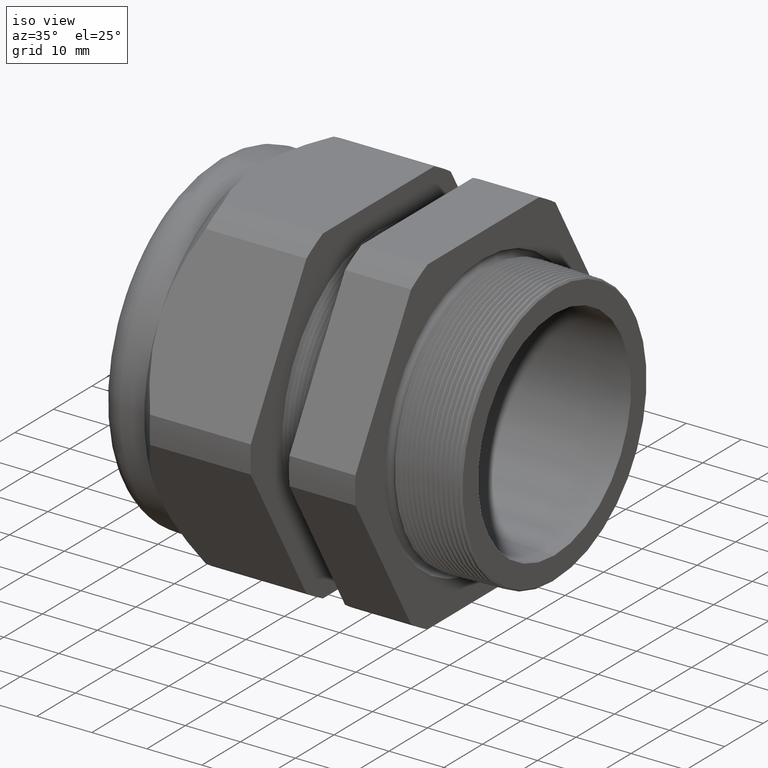
[diagram: clean part render]
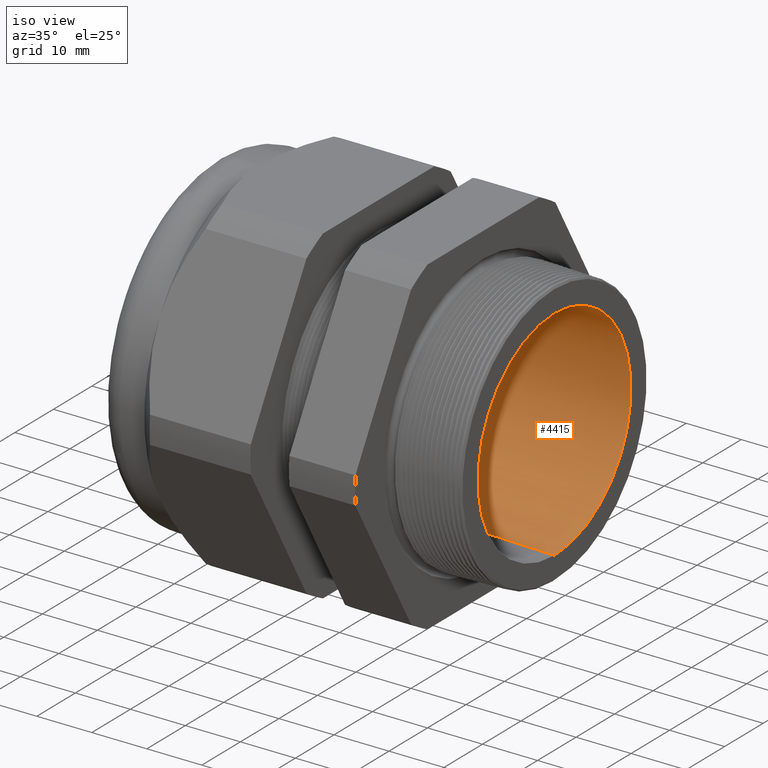
[diagram: same view with one face highlighted and labeled with its STEP entity id]
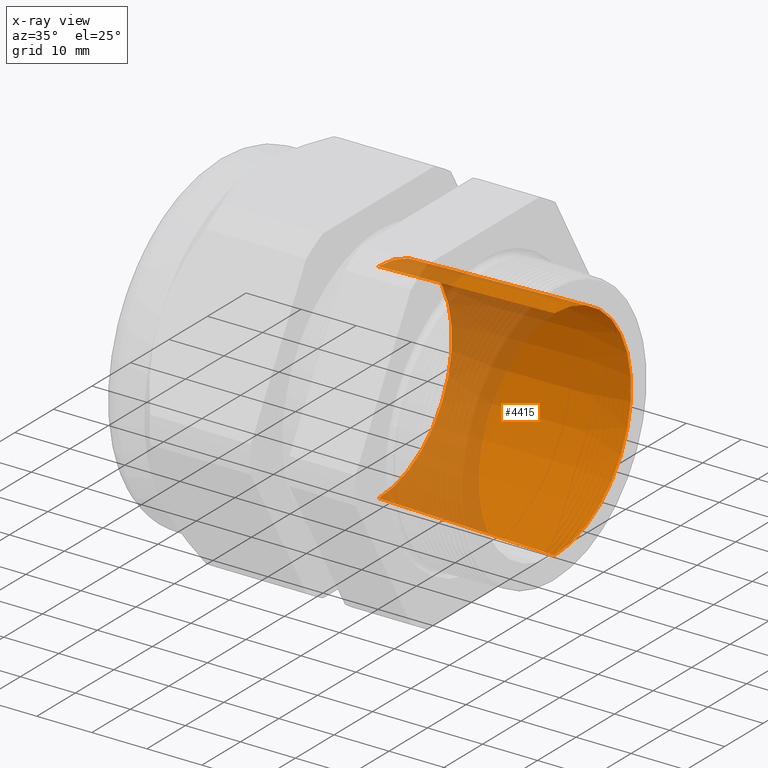
[diagram: x-ray of the same camera — body ghosted, the highlighted face saturated]
A machine part, iso view. The second image highlights one B-rep face of the part: STEP entity #4415.
The next image is the same camera in x-ray: the body ghosted, the highlighted face saturated — about 36% of this face is hidden behind the body in this view.
In plain terms, the highlighted conical surface has half-angle 1.458 deg.
Its self-contained STEP definition (entity closure, byte-faithful):
#46 = VERTEX_POINT ( 'NONE', #159 ) ;
#159 = CARTESIAN_POINT ( 'NONE',  ( -1.058802799999999400, 9.381021583694917600E-017, 0.7500000000000001100 ) ) ;
#1978 = DIRECTION ( 'NONE',  ( 0.0000000000000000000, 0.0000000000000000000, -1.000000000000000000 ) ) ;
#1979 = DIRECTION ( 'NONE',  ( 1.000000000000000000, 0.0000000000000000000, 0.0000000000000000000 ) ) ;
#1980 = CARTESIAN_POINT ( 'NONE',  ( -1.058802799999999400, 0.0000000000000000000, 0.0000000000000000000 ) ) ;
#1981 = AXIS2_PLACEMENT_3D ( 'NONE', #1980, #1979, #1978 ) ;
#1982 = CIRCLE ( 'NONE', #1981, 0.7500000000000001100 ) ;
#2041 = DIRECTION ( 'NONE',  ( 0.0000000000000000000, 0.0000000000000000000, -1.000000000000000000 ) ) ;
#2042 = DIRECTION ( 'NONE',  ( 1.000000000000000000, 0.0000000000000000000, 0.0000000000000000000 ) ) ;
#2043 = CARTESIAN_POINT ( 'NONE',  ( 0.2000000000000000400, 0.0000000000000000000, 0.0000000000000000000 ) ) ;
#2044 = AXIS2_PLACEMENT_3D ( 'NONE', #2043, #2042, #2041 ) ;
#2045 = CIRCLE ( 'NONE', #2044, 0.7820370886081360300 ) ;
#2053 = DIRECTION ( 'NONE',  ( 0.0000000000000000000, 0.0000000000000000000, -1.000000000000000000 ) ) ;
#2054 = DIRECTION ( 'NONE',  ( 1.000000000000000000, 0.0000000000000000000, 0.0000000000000000000 ) ) ;
#2055 = AXIS2_PLACEMENT_3D ( 'NONE', #2058, #2054, #2053 ) ;
#2056 = CONICAL_SURFACE ( 'NONE', #2055, 0.7500000000000001100, 0.02544494993204031400 ) ;
#2058 = CARTESIAN_POINT ( 'NONE',  ( -1.058802799999999400, 0.0000000000000000000, 0.0000000000000000000 ) ) ;
#2064 = FACE_OUTER_BOUND ( 'NONE', #4405, .T. ) ;
#2464 = DIRECTION ( 'NONE',  ( 0.9996762947271695700, 0.0000000000000000000, -0.02544220431796574000 ) ) ;
#2465 = VECTOR ( 'NONE', #2464, 39.37007874015748100 ) ;
#2466 = CARTESIAN_POINT ( 'NONE',  ( -1.058802799999999400, 0.0000000000000000000, -0.7500000000000001100 ) ) ;
#2467 = LINE ( 'NONE', #2466, #2465 ) ;
#2484 = CARTESIAN_POINT ( 'NONE',  ( 0.2000000000000000400, 9.577192173784689300E-017, 0.7820370886081360300 ) ) ;
#2485 = CARTESIAN_POINT ( 'NONE',  ( 0.2000000000000000400, 0.0000000000000000000, -0.7820370886081360300 ) ) ;
#2513 = DIRECTION ( 'NONE',  ( 0.9996762947271695700, 3.115771408124971500E-018, 0.02544220431796574000 ) ) ;
#2514 = VECTOR ( 'NONE', #2513, 39.37007874015748100 ) ;
#2515 = CARTESIAN_POINT ( 'NONE',  ( -1.058802799999999400, 9.184850993605150900E-017, 0.7500000000000001100 ) ) ;
#2516 = LINE ( 'NONE', #2515, #2514 ) ;
#2550 = CARTESIAN_POINT ( 'NONE',  ( -1.058802799999999400, 0.0000000000000000000, -0.7500000000000001100 ) ) ;
#4380 = EDGE_CURVE ( 'NONE', #4678, #46, #1982, .T. ) ;
#4385 = ORIENTED_EDGE ( 'NONE', *, *, #4658, .T. ) ;
#4386 = ORIENTED_EDGE ( 'NONE', *, *, #4426, .T. ) ;
#4400 = ORIENTED_EDGE ( 'NONE', *, *, #4667, .F. ) ;
#4402 = ORIENTED_EDGE ( 'NONE', *, *, #4380, .F. ) ;
#4405 = EDGE_LOOP ( 'NONE', ( #4400, #4402, #4385, #4386 ) ) ;
#4415 = ADVANCED_FACE ( 'NONE', ( #2064 ), #2056, .F. ) ;
#4426 = EDGE_CURVE ( 'NONE', #4647, #4648, #2045, .T. ) ;
#4647 = VERTEX_POINT ( 'NONE', #2485 ) ;
#4648 = VERTEX_POINT ( 'NONE', #2484 ) ;
#4658 = EDGE_CURVE ( 'NONE', #4678, #4647, #2467, .T. ) ;
#4667 = EDGE_CURVE ( 'NONE', #46, #4648, #2516, .T. ) ;
#4678 = VERTEX_POINT ( 'NONE', #2550 ) ;